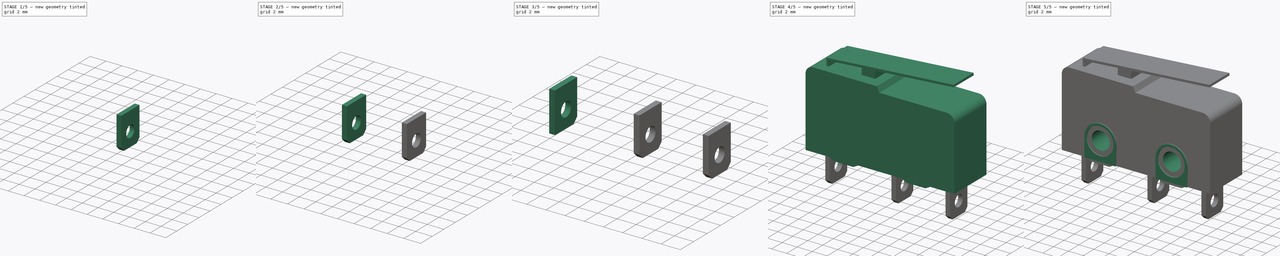
[diagram: build sequence overview — one tinted view per stage of 5, left to right]
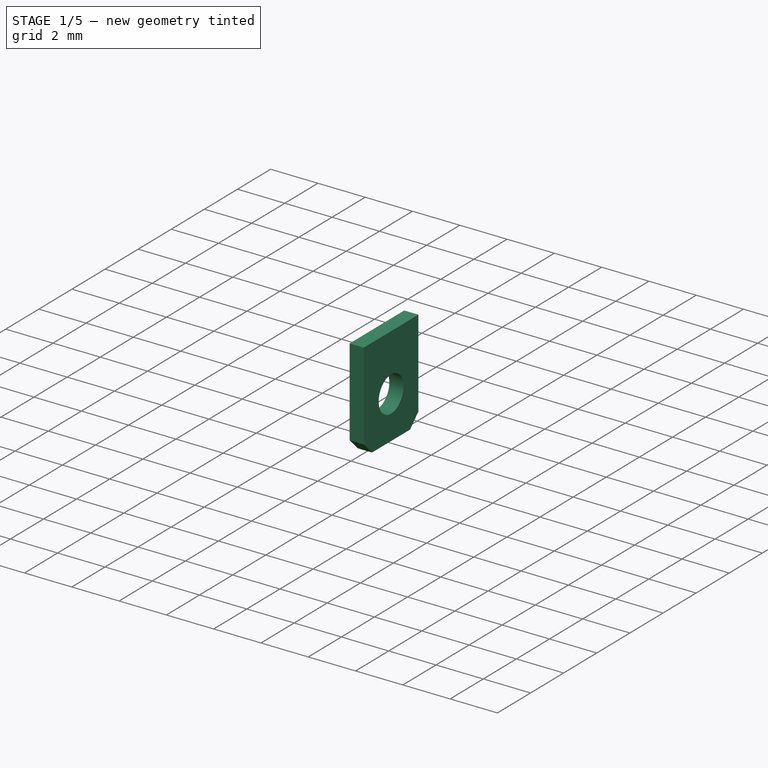
[diagram: stage 1 of 5 — iso view after this stage's code; geometry added in this stage tinted green]
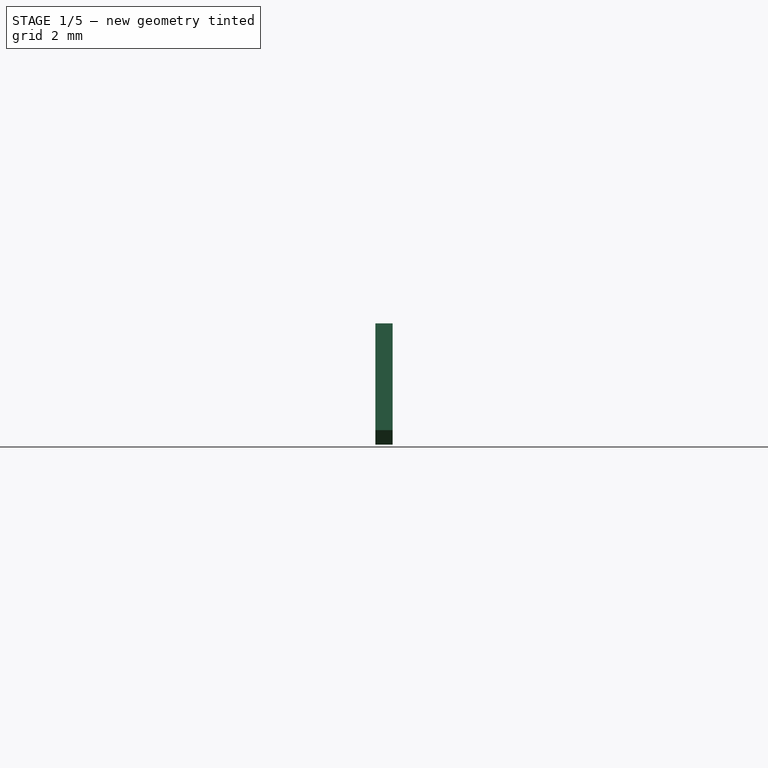
[diagram: stage 1 of 5 — front view after this stage's code; geometry added in this stage tinted green]
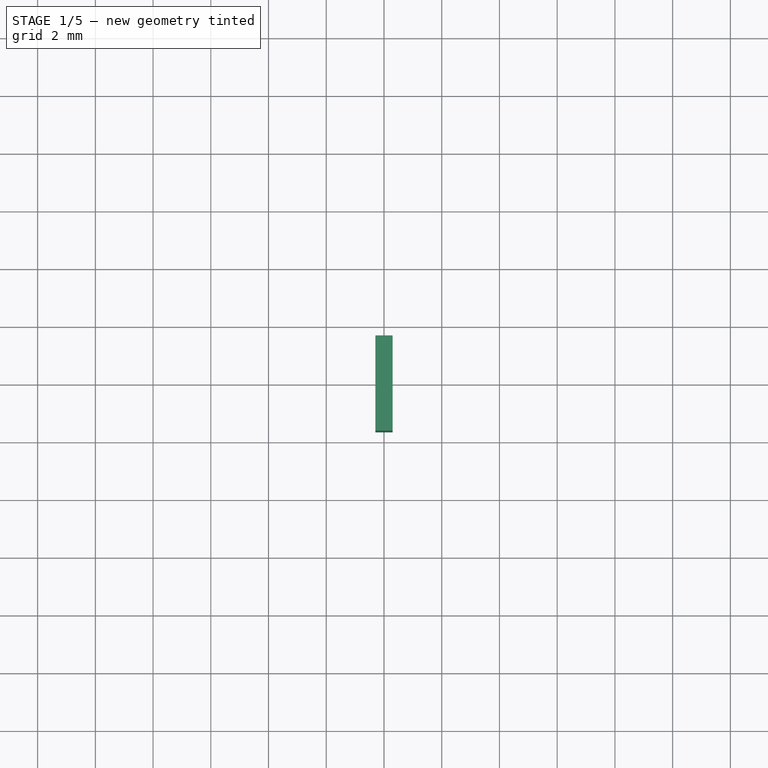
[diagram: stage 1 of 5 — top view after this stage's code; geometry added in this stage tinted green]
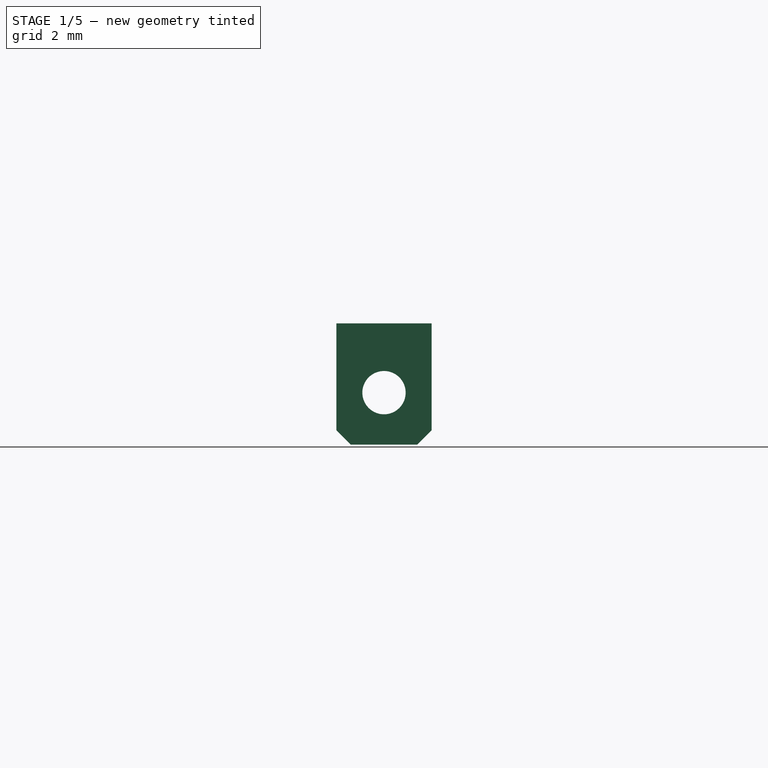
[diagram: stage 1 of 5 — right view after this stage's code; geometry added in this stage tinted green]
FCSTD DOCUMENT  (FreeCAD 0.16R5958 (Git))
Label: microswitch-ESS05-EGE
License: All rights reserved
LicenseURL: http://en.wikipedia.org/wiki/All_rights_reserved
objects: Sketcher::SketchObject×13, PartDesign::Pad×8, PartDesign::Chamfer×6, PartDesign::Pocket×5
note: 45 computed .brp shape members not serialized (recipe doc carries the construction recipe); baked Part::Feature solids carry a one-line shape summary decoded from their .brp

FEATURE [PartDesign::Pad] Pad006
  Length = 3.3
  Length2 = 100
  Midplane = true
  Placement = pos=(0,0,0) rot=(1,0,0;1.5708rad)
  Sketch = -> Sketch009
  Type = 0
FEATURE [Sketcher::SketchObject] Sketch010  label="Trou-contact-1"
  Placement = pos=(8.3,0,0) rot=(0.707107,0,0.707107;3.14159rad)
  Support = -> Pad006 [Face2]
  sketch-geometry (1):
    g0: Circle CenterX=-4.9 CenterY=0 CenterZ=0 NormalX=0 NormalY=0 NormalZ=1 Radius=0.75
  constraints (3):
    c: PointOnObject(g0,g-1)
    c: Radius(g0) = 0.75
    c: DistanceX(g0) = -4.9
FEATURE [PartDesign::Pocket] Pocket003
  Length = 0.6
  Placement = pos=(0,0,0) rot=(1,0,0;1.5708rad)
  Sketch = -> Sketch010
  Type = 0
FEATURE [PartDesign::Chamfer] Chamfer002
  Base = -> Pocket003 [Edge13]
  Placement = pos=(0,0,0) rot=(1,0,0;1.5708rad)
  Size = 0.5
FEATURE [PartDesign::Chamfer] Chamfer005
  Base = -> Chamfer002 [Edge9]
  Placement = pos=(0,0,0) rot=(1,0,0;1.5708rad)
  Size = 0.5
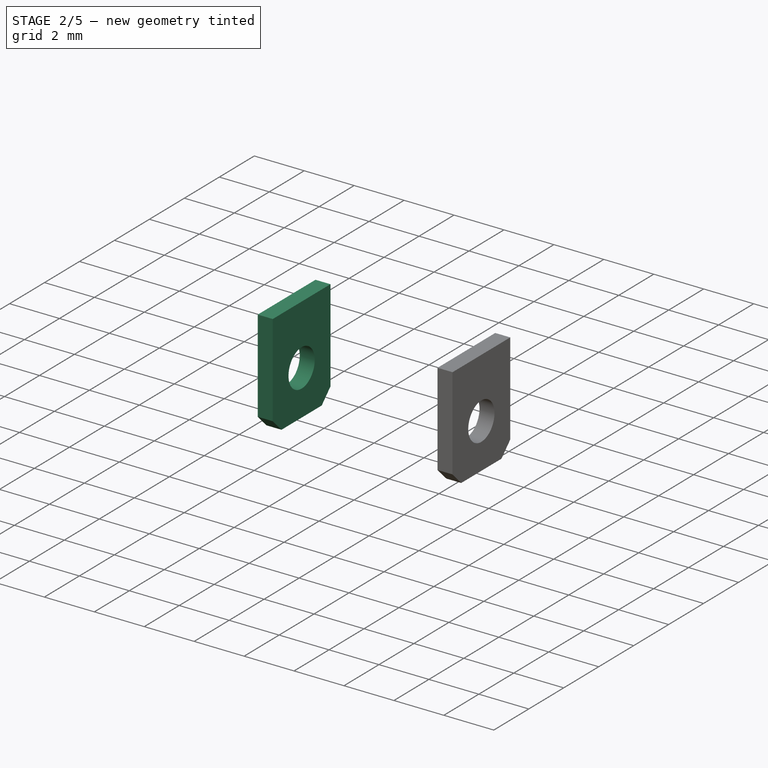
[diagram: stage 2 of 5 — iso view after this stage's code; geometry added in this stage tinted green]
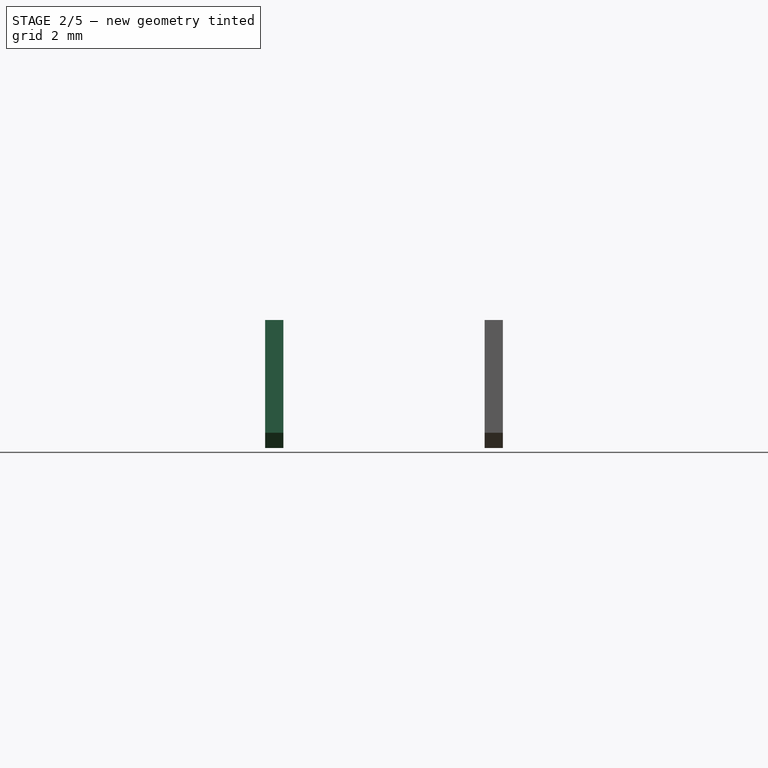
[diagram: stage 2 of 5 — front view after this stage's code; geometry added in this stage tinted green]
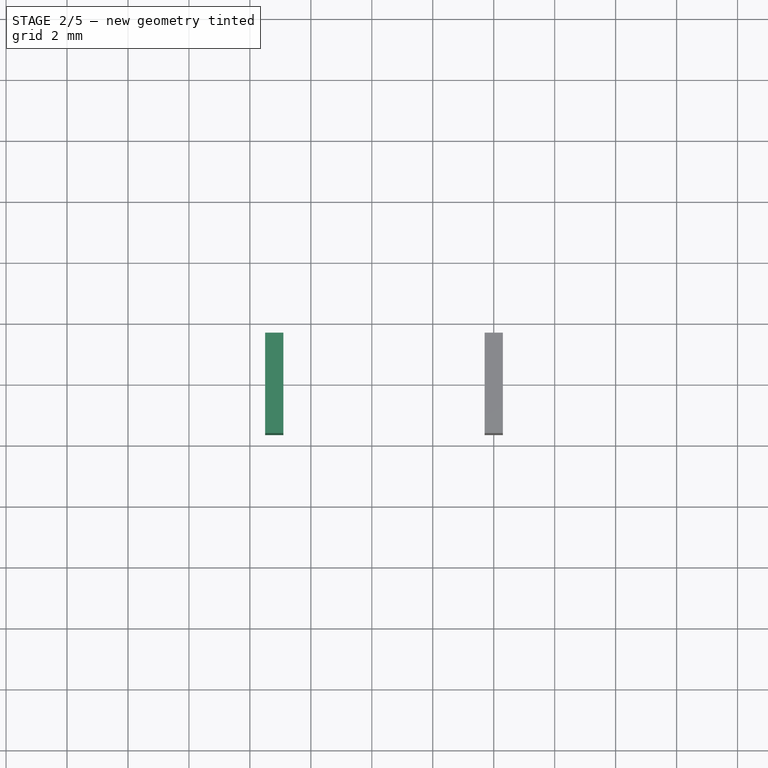
[diagram: stage 2 of 5 — top view after this stage's code; geometry added in this stage tinted green]
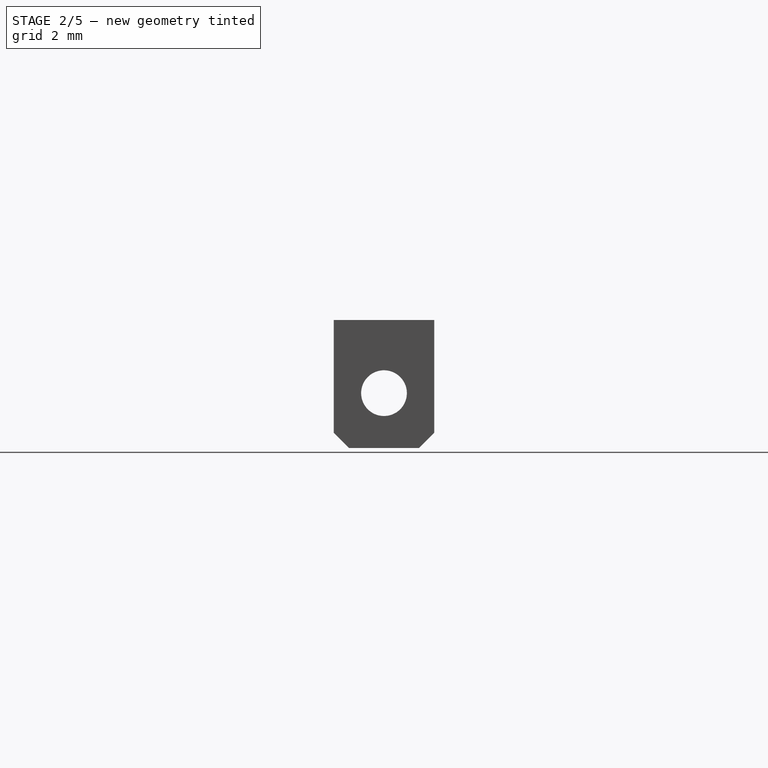
[diagram: stage 2 of 5 — right view after this stage's code; geometry added in this stage tinted green]
FEATURE [Sketcher::SketchObject] Sketch007  label="Contact-3"
  Placement = pos=(0,0,0) rot=(1,0,0;1.5708rad)
  sketch-geometry (4):
    g0: LineSegment StartX=0.5 StartY=-2.5 StartZ=0 EndX=1.1 EndY=-2.5 EndZ=0
    g1: LineSegment StartX=1.1 StartY=-2.5 StartZ=0 EndX=1.1 EndY=-6.7 EndZ=0
    g2: LineSegment StartX=1.1 StartY=-6.7 StartZ=0 EndX=0.5 EndY=-6.7 EndZ=0
    g3: LineSegment StartX=0.5 StartY=-6.7 StartZ=0 EndX=0.5 EndY=-2.5 EndZ=0
  constraints (12):
    c: Coincident(g0,g1)
    c: Coincident(g1,g2)
    c: Coincident(g2,g3)
    c: Coincident(g3,g0)
    c: Horizontal(g0)
    c: Horizontal(g2)
    c: Vertical(g1)
    c: Vertical(g3)
    c: DistanceY(g0) = -2.5
    c: DistanceY(g1) = -4.2
    c: DistanceX(g2) = -0.6
    c: DistanceX(g2) = 0.5
FEATURE [PartDesign::Pad] Pad005
  Length = 3.3
  Length2 = 100
  Midplane = true
  Placement = pos=(0,0,0) rot=(1,0,0;1.5708rad)
  Sketch = -> Sketch007
  Type = 0
FEATURE [Sketcher::SketchObject] Sketch008  label="Trou-contact-3"
  Placement = pos=(1.1,0,0) rot=(0.707107,0,0.707107;3.14159rad)
  Support = -> Pad005 [Face2]
  sketch-geometry (1):
    g0: Circle CenterX=-4.9 CenterY=0 CenterZ=0 NormalX=0 NormalY=0 NormalZ=1 Radius=0.75
  constraints (3):
    c: PointOnObject(g0,g-1)
    c: Radius(g0) = 0.75
    c: DistanceX(g0) = -4.9
FEATURE [Sketcher::SketchObject] Sketch009  label="Contact-1"
  Placement = pos=(0,0,0) rot=(1,0,0;1.5708rad)
  sketch-geometry (4):
    g0: LineSegment StartX=7.7 StartY=-2.5 StartZ=0 EndX=8.3 EndY=-2.5 EndZ=0
    g1: LineSegment StartX=8.3 StartY=-2.5 StartZ=0 EndX=8.3 EndY=-6.7 EndZ=0
    g2: LineSegment StartX=8.3 StartY=-6.7 StartZ=0 EndX=7.7 EndY=-6.7 EndZ=0
    g3: LineSegment StartX=7.7 StartY=-6.7 StartZ=0 EndX=7.7 EndY=-2.5 EndZ=0
  constraints (12):
    c: Coincident(g0,g1)
    c: Coincident(g1,g2)
    c: Coincident(g2,g3)
    c: Coincident(g3,g0)
    c: Horizontal(g0)
    c: Horizontal(g2)
    c: Vertical(g1)
    c: Vertical(g3)
    c: DistanceY(g0) = -2.5
    c: DistanceY(g1) = -4.2
    c: DistanceX(g2) = -0.6
    c: DistanceX(g2) = 7.7
FEATURE [Sketcher::SketchObject] Sketch011  label="Contact-2"
  Placement = pos=(0,0,0) rot=(1,0,0;1.5708rad)
  sketch-geometry (5):
    g0: LineSegment StartX=-8.3 StartY=-2.5 StartZ=0 EndX=-7.7 EndY=-2.5 EndZ=0
    g1: LineSegment StartX=-7.7 StartY=-2.5 StartZ=0 EndX=-7.7 EndY=-6.7 EndZ=0
    g2: LineSegment StartX=-7.7 StartY=-6.7 StartZ=0 EndX=-8.3 EndY=-6.7 EndZ=0
    g3: LineSegment StartX=-8.3 StartY=-6.7 StartZ=0 EndX=-8.3 EndY=-2.5 EndZ=0
    g4: GeomPoint [constr] X=0.5 Y=-6.65027 Z=0
  constraints (13):
    c: Coincident(g0,g1)
    c: Coincident(g1,g2)
    c: Coincident(g2,g3)
    c: Coincident(g3,g0)
    c: Horizontal(g0)
    c: Horizontal(g2)
    c: Vertical(g1)
    c: Vertical(g3)
    c: DistanceY(g0) = -2.5
    c: DistanceY(g1) = -4.2
    c: DistanceX(g2) = -0.6
    c: DistanceX(g4) = 0.5
    c: DistanceX(g4,g1) = -8.2
FEATURE [PartDesign::Pocket] Pocket002
  Length = 0.6
  Placement = pos=(0,0,0) rot=(1,0,0;1.5708rad)
  Sketch = -> Sketch008
  Type = 0
FEATURE [PartDesign::Chamfer] Chamfer001
  Base = -> Pocket002 [Edge13]
  Placement = pos=(0,0,0) rot=(1,0,0;1.5708rad)
  Size = 0.5
FEATURE [PartDesign::Chamfer] Chamfer004
  Base = -> Chamfer001 [Edge9]
  Placement = pos=(0,0,0) rot=(1,0,0;1.5708rad)
  Size = 0.5
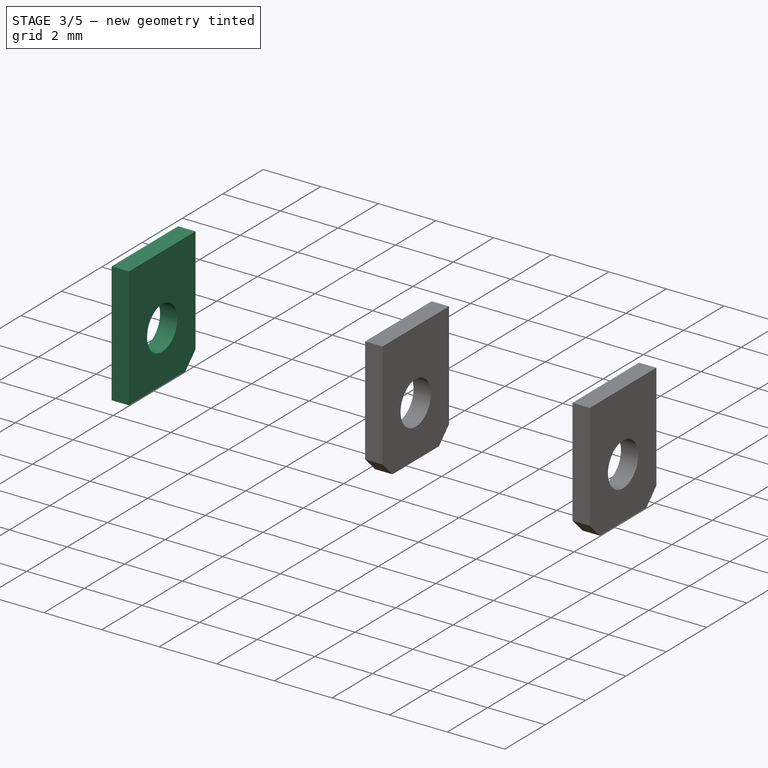
[diagram: stage 3 of 5 — iso view after this stage's code; geometry added in this stage tinted green]
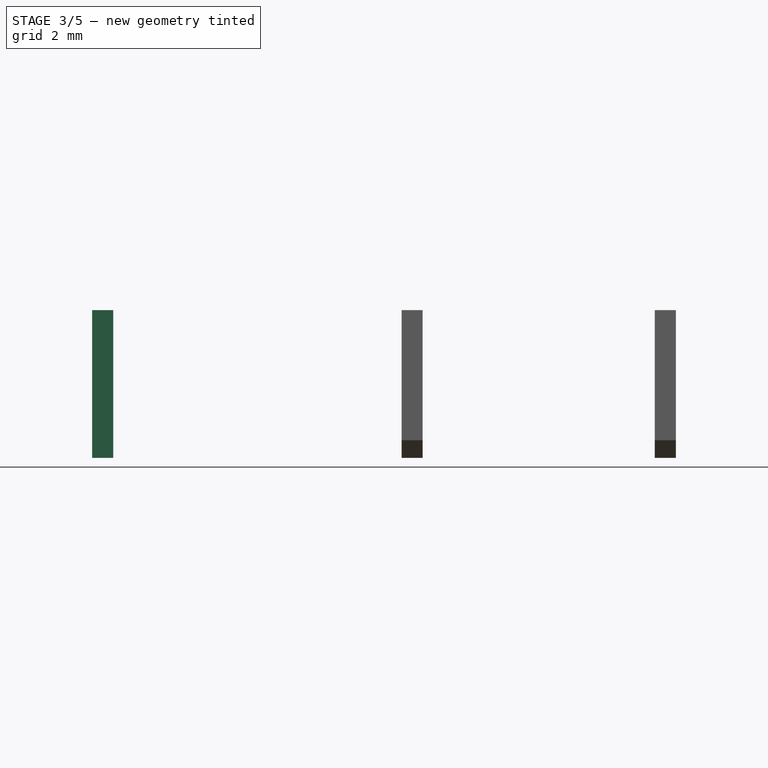
[diagram: stage 3 of 5 — front view after this stage's code; geometry added in this stage tinted green]
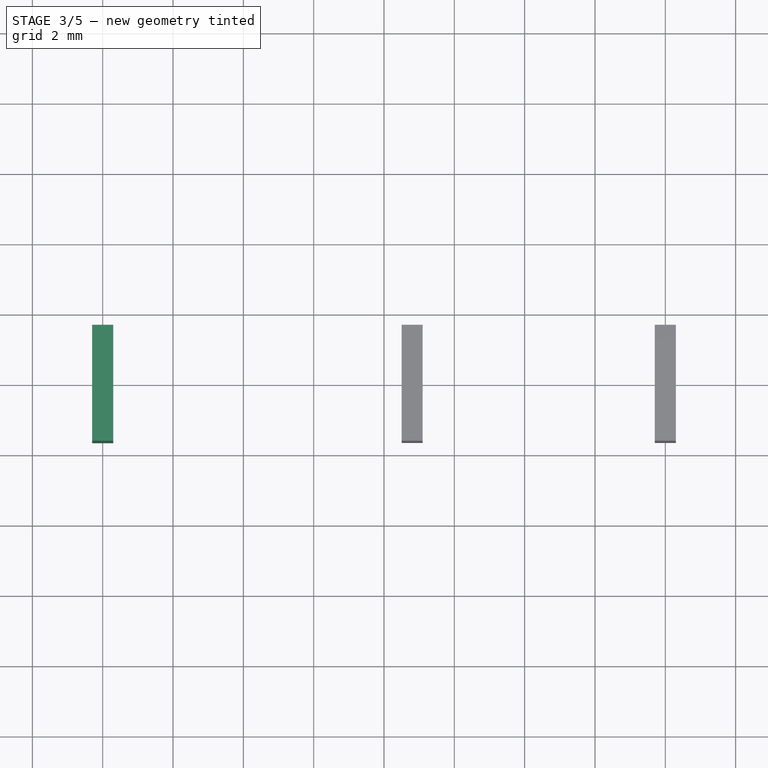
[diagram: stage 3 of 5 — top view after this stage's code; geometry added in this stage tinted green]
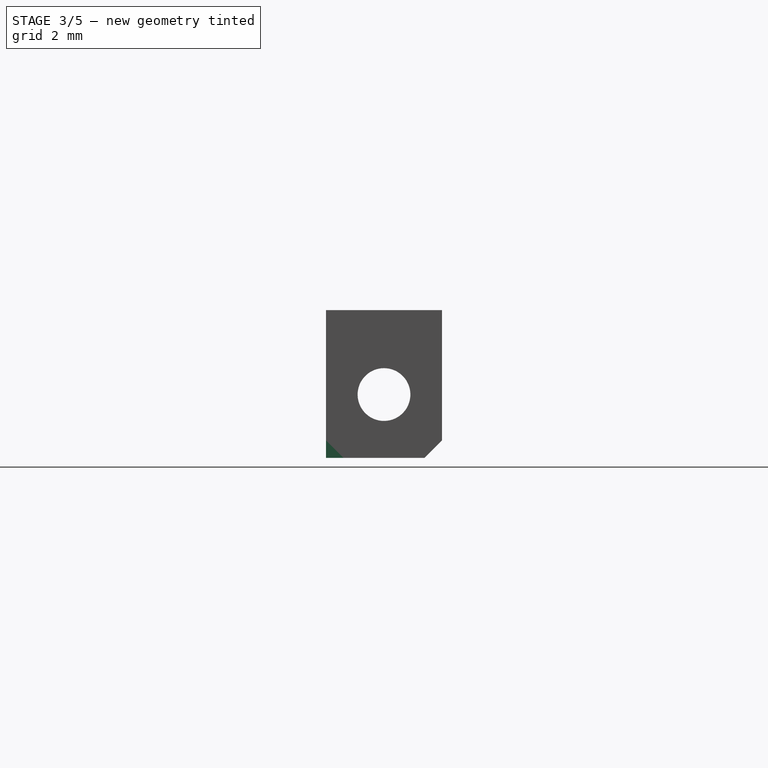
[diagram: stage 3 of 5 — right view after this stage's code; geometry added in this stage tinted green]
FEATURE [PartDesign::Pad] Pad007
  Length = 3.3
  Length2 = 100
  Midplane = true
  Placement = pos=(0,0,0) rot=(1,0,0;1.5708rad)
  Sketch = -> Sketch011
  Type = 0
FEATURE [Sketcher::SketchObject] Sketch012  label="Trou-contact-2"
  Placement = pos=(-8.3,0,0) rot=(0.707107,0,-0.707107;3.14159rad)
  Support = -> Pad007 [Face4]
  sketch-geometry (1):
    g0: Circle CenterX=4.9 CenterY=0 CenterZ=0 NormalX=0 NormalY=0 NormalZ=1 Radius=0.75
  constraints (3):
    c: PointOnObject(g0,g-1)
    c: Radius(g0) = 0.75
    c: DistanceX(g0) = 4.9
FEATURE [PartDesign::Pocket] Pocket004
  Length = 0.6
  Placement = pos=(0,0,0) rot=(1,0,0;1.5708rad)
  Sketch = -> Sketch012
  Type = 0
FEATURE [PartDesign::Chamfer] Chamfer
  Base = -> Pocket004 [Edge13]
  Placement = pos=(0,0,0) rot=(1,0,0;1.5708rad)
  Size = 0.5
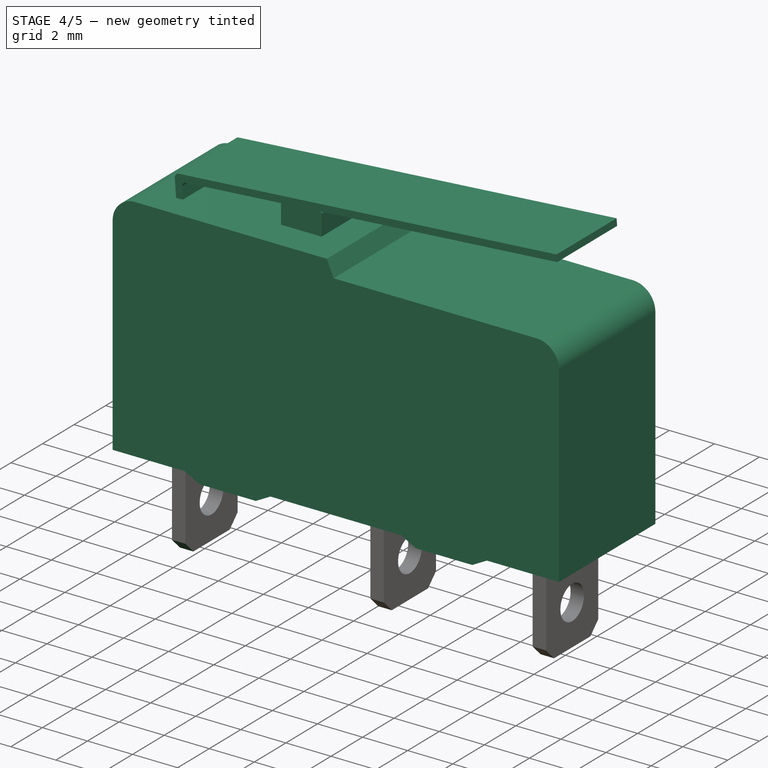
[diagram: stage 4 of 5 — iso view after this stage's code; geometry added in this stage tinted green]
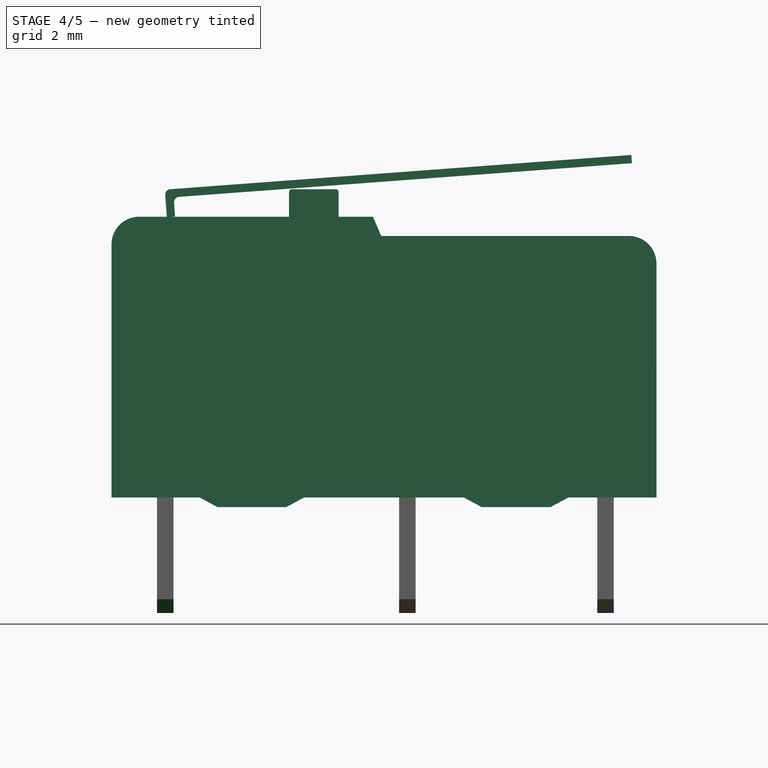
[diagram: stage 4 of 5 — front view after this stage's code; geometry added in this stage tinted green]
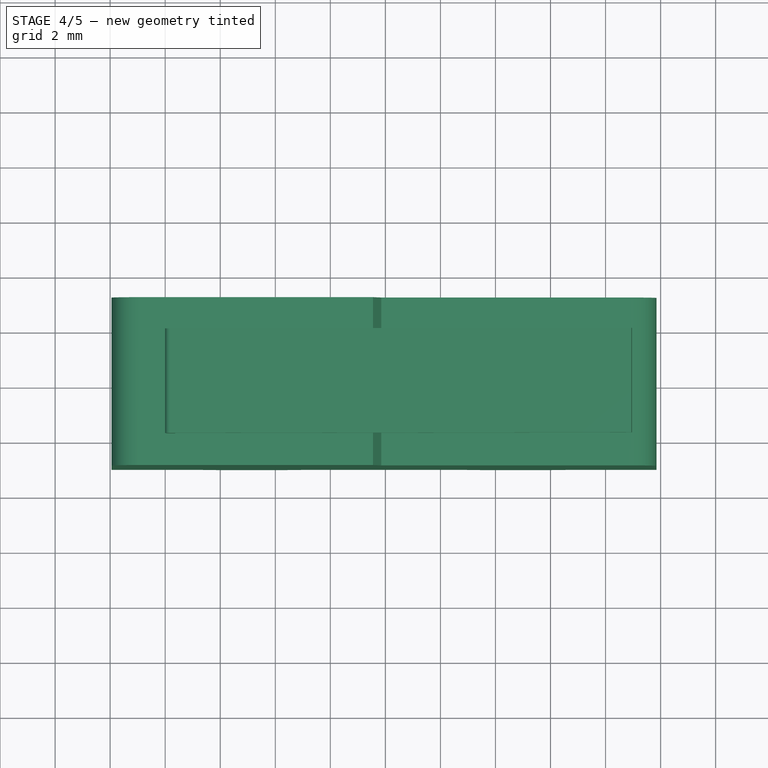
[diagram: stage 4 of 5 — top view after this stage's code; geometry added in this stage tinted green]
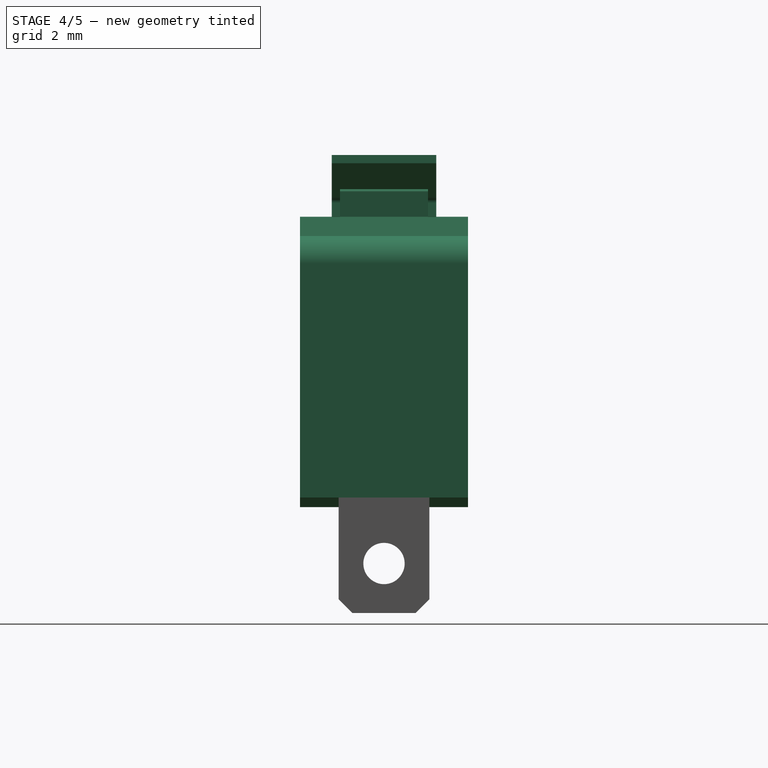
[diagram: stage 4 of 5 — right view after this stage's code; geometry added in this stage tinted green]
FEATURE [Sketcher::SketchObject] Sketch  label="Profil-Corp"
  Placement = pos=(0,0,0) rot=(1,0,0;1.5708rad)
  sketch-geometry (19):
    g0: LineSegment StartX=-8.95 StartY=7.7 StartZ=0 EndX=-0.45 EndY=7.7 EndZ=0
    g1: LineSegment StartX=9.85 StartY=6 StartZ=0 EndX=9.85 EndY=-2.5 EndZ=0
    g2: LineSegment StartX=-9.95 StartY=-2.5 StartZ=0 EndX=-9.95 EndY=6.7 EndZ=0
    g3: LineSegment StartX=-0.45 StartY=7.7 StartZ=0 EndX=-0.15 EndY=7 EndZ=0
    g4: LineSegment StartX=-0.15 StartY=7 StartZ=0 EndX=8.85 EndY=7 EndZ=0
    g5: ArcOfCircle CenterX=-8.95 CenterY=6.7 CenterZ=0 NormalX=0 NormalY=0 NormalZ=1 Radius=1 StartAngle=1.5708 EndAngle=3.14159
    g6: ArcOfCircle CenterX=8.85 CenterY=6 CenterZ=0 NormalX=0 NormalY=0 NormalZ=1 Radius=1 StartAngle=0 EndAngle=1.5708
    g7: LineSegment StartX=-9.95 StartY=-2.5 StartZ=0 EndX=-6.75 EndY=-2.5 EndZ=0
    g8: LineSegment StartX=-6.75 StartY=-2.5 StartZ=0 EndX=-6.1 EndY=-2.85 EndZ=0
    g9: LineSegment StartX=-6.1 StartY=-2.85 StartZ=0 EndX=-3.6 EndY=-2.85 EndZ=0
    g10: LineSegment StartX=-3.6 StartY=-2.85 StartZ=0 EndX=-2.95 EndY=-2.5 EndZ=0
    g11: LineSegment StartX=-2.95 StartY=-2.5 StartZ=0 EndX=2.85 EndY=-2.5 EndZ=0
    g12: LineSegment StartX=2.85 StartY=-2.5 StartZ=0 EndX=3.5 EndY=-2.85 EndZ=0
    g13: LineSegment StartX=3.5 StartY=-2.85 StartZ=0 EndX=6 EndY=-2.85 EndZ=0
    g14: LineSegment StartX=6 StartY=-2.85 StartZ=0 EndX=6.65 EndY=-2.5 EndZ=0
    g15: LineSegment StartX=6.65 StartY=-2.5 StartZ=0 EndX=9.85 EndY=-2.5 EndZ=0
    g16: LineSegment [constr] StartX=2.85 StartY=-2.5 StartZ=0 EndX=6.65 EndY=-2.5 EndZ=0
    g17: LineSegment [constr] StartX=-6.75 StartY=-2.5 StartZ=0 EndX=-2.95 EndY=-2.5 EndZ=0
    g18: LineSegment [constr] StartX=-3.6 StartY=-2.85 StartZ=0 EndX=3.5 EndY=-2.85 EndZ=0
  constraints (52):
    c: Horizontal(g0)
    c: Vertical(g1)
    c: Vertical(g2)
    c: Coincident(g3,g4)
    c: Horizontal(g4)
    c: Coincident(g0,g3)
    c: Tangent(g0,g5) = 1.5708
    c: Tangent(g2,g5) = 1.5708
    c: Tangent(g1,g6) = 1.5708
    c: Tangent(g4,g6) = 1.5708
    c: DistanceY(g4,g1) = -9.5
    c: DistanceY(g0,g1) = -10.2
    c: Radius(g6) = 1
    c: Equal(g5,g6)
    c: Coincident(g2,g7)
    c: Horizontal(g7)
    c: Coincident(g7,g8)
    c: Coincident(g8,g9)
    c: Horizontal(g9)
    c: Coincident(g9,g10)
    c: Coincident(g10,g11)
    c: Horizontal(g11)
    c: Coincident(g11,g12)
    c: Coincident(g12,g13)
    c: Horizontal(g13)
    c: Coincident(g13,g14)
    c: Coincident(g14,g15)
    c: Coincident(g15,g1)
    c: Horizontal(g15)
    c: Equal(g9,g13)
    c: DistanceX(g9) = 2.5
    c: DistanceY(g13,g1) = 0.35
    c: Coincident(g16,g11)
    c: Coincident(g16,g14)
    c: Horizontal(g16)
    c: Coincident(g17,g7)
    c: Coincident(g17,g10)
    c: Horizontal(g17)
    c: Coincident(g18,g9)
    c: Coincident(g18,g12)
    c: Horizontal(g18)
    c: DistanceX(g2,g1) = 19.8
    c: DistanceX(g3,g1) = 10
    c: DistanceX(g2,g0) = 9.5
    c: Equal(g10,g8)
    c: Equal(g8,g12)
    c: Equal(g12,g14)
    c: DistanceY(g1) = -2.5
    c: DistanceX(g1) = 9.85
    c: Equal(g15,g7)
    c: DistanceX(g15) = 3.2
    c: DistanceX(g11) = 5.8
FEATURE [PartDesign::Pad] Pad
  Length = 6.1
  Length2 = 100
  Midplane = true
  Placement = pos=(0,0,0) rot=(1,0,0;1.5708rad)
  Sketch = -> Sketch
  Type = 0
FEATURE [Sketcher::SketchObject] Sketch005  label="Switch"
  Placement = pos=(0,0,0) rot=(1,0,0;1.5708rad)
  sketch-geometry (6):
    g0: LineSegment StartX=-3.4 StartY=8.7 StartZ=0 EndX=-1.8 EndY=8.7 EndZ=0
    g1: LineSegment StartX=-1.7 StartY=8.6 StartZ=0 EndX=-1.7 EndY=7.7 EndZ=0
    g2: LineSegment StartX=-1.7 StartY=7.7 StartZ=0 EndX=-3.5 EndY=7.7 EndZ=0
    g3: LineSegment StartX=-3.5 StartY=7.7 StartZ=0 EndX=-3.5 EndY=8.6 EndZ=0
    g4: ArcOfCircle CenterX=-1.8 CenterY=8.6 CenterZ=0 NormalX=0 NormalY=0 NormalZ=1 Radius=0.1 StartAngle=0 EndAngle=1.5708
    g5: ArcOfCircle CenterX=-3.4 CenterY=8.6 CenterZ=0 NormalX=0 NormalY=0 NormalZ=1 Radius=0.1 StartAngle=1.5708 EndAngle=3.14159
  constraints (16):
    c: Coincident(g1,g2)
    c: Coincident(g2,g3)
    c: Horizontal(g0)
    c: Horizontal(g2)
    c: Vertical(g1)
    c: Vertical(g3)
    c: Tangent(g0,g4) = 1.5708
    c: Tangent(g1,g4) = 1.5708
    c: Tangent(g0,g5) = 1.5708
    c: Tangent(g3,g5) = 1.5708
    c: Radius(g4) = 0.1
    c: Equal(g4,g5)
    c: DistanceX(g3,g1) = 1.8
    c: DistanceY(g0) = 8.7
    c: DistanceY(g0,g2) = -1
    c: DistanceX(g1) = -1.7
FEATURE [PartDesign::Pad] Pad003
  Length = 3.2
  Length2 = 100
  Midplane = true
  Placement = pos=(0,0,0) rot=(1,0,0;1.5708rad)
  Sketch = -> Sketch005
  Type = 0
FEATURE [Sketcher::SketchObject] Sketch006  label="Languette"
  Placement = pos=(0,0,0) rot=(1,0,0;1.5708rad)
  sketch-geometry (9):
    g0: LineSegment StartX=-7.94071 StartY=7.68793 StartZ=0 EndX=-8 EndY=8.48573 EndZ=0
    g1: LineSegment StartX=-7.81537 StartY=8.7 StartZ=0 EndX=8.93726 EndY=9.94494 EndZ=0
    g2: LineSegment StartX=8.93726 StartY=9.94494 StartZ=0 EndX=8.95955 EndY=9.64494 EndZ=0
    g3: LineSegment StartX=8.95955 StartY=9.64494 StartZ=0 EndX=-7.49308 EndY=8.42229 EndZ=0
    g4: LineSegment StartX=-7.67771 StartY=8.20802 StartZ=0 EndX=-7.64071 EndY=7.71022 EndZ=0
    g5: LineSegment StartX=-7.64071 StartY=7.71022 StartZ=0 EndX=-7.94071 EndY=7.68793 EndZ=0
    g6: ArcOfCircle CenterX=-7.80055 CenterY=8.50055 CenterZ=0 NormalX=0 NormalY=0 NormalZ=1 Radius=0.2 StartAngle=1.64497 EndAngle=3.21577
    g7: ArcOfCircle CenterX=-7.47826 CenterY=8.22284 CenterZ=0 NormalX=0 NormalY=0 NormalZ=1 Radius=0.2 StartAngle=1.64497 EndAngle=3.21577
    g8: LineSegment [constr] StartX=-7.51537 StartY=8.72229 StartZ=0 EndX=-7.49308 EndY=8.42229 EndZ=0
  constraints (25):
    c: Coincident(g1,g2)
    c: Coincident(g2,g3)
    c: Coincident(g4,g5)
    c: Coincident(g5,g0)
    c: Tangent(g0,g6) = 1.5708
    c: Tangent(g1,g6) = 1.5708
    c: Tangent(g3,g7) = -1.5708
    c: Tangent(g4,g7) = -1.5708
    c: Perpendicular(g3,g4)
    c: Perpendicular(g1,g0)
    c: Perpendicular(g4,g5)
    c: Perpendicular(g2,g1)
    c: Equal(g2,g5)
    c: DistanceY(g2) = -0.3
    c: Coincident(g8,g3)
    c: PointOnObject(g8,g1)
    c: Perpendicular(g1,g8)
    c: Equal(g8,g2)
    c: Radius(g7) = 0.2
    c: Radius(g6) = 0.2
    c: DistanceX(g0) = -8
    c: Distance(g0) = 0.8
    c: Distance(g0,g1) = 17
    c: DistanceY(g1) = 8.7
    c: Angle(g-1,g1) = 0.0741765
FEATURE [PartDesign::Pad] Pad004
  Length = 3.8
  Length2 = 100
  Midplane = true
  Placement = pos=(0,0,0) rot=(1,0,0;1.5708rad)
  Sketch = -> Sketch006
  Type = 0
FEATURE [PartDesign::Chamfer] Chamfer003
  Base = -> Chamfer [Edge9]
  Placement = pos=(0,0,0) rot=(1,0,0;1.5708rad)
  Size = 0.5
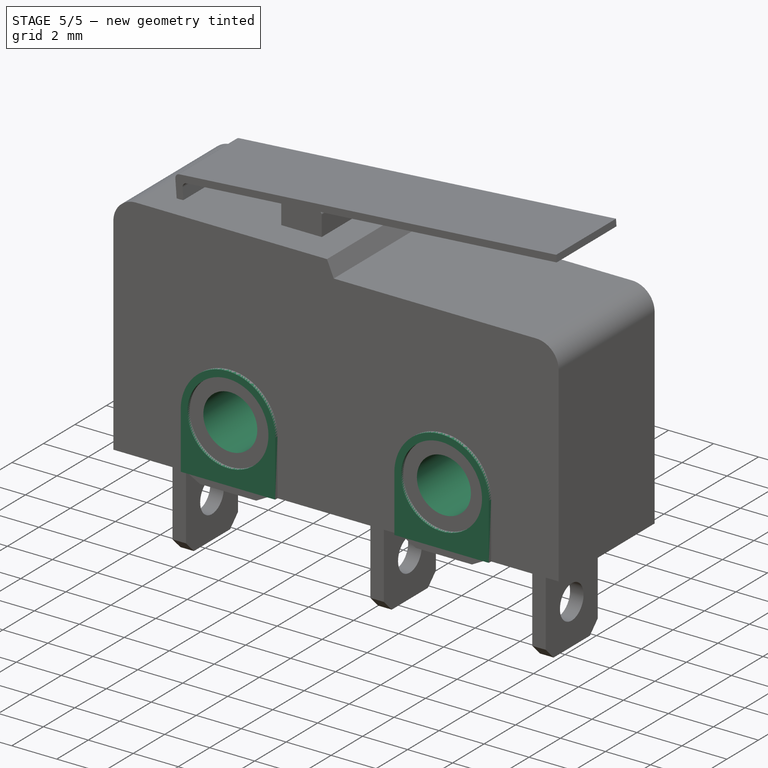
[diagram: stage 5 of 5 — iso view after this stage's code; geometry added in this stage tinted green]
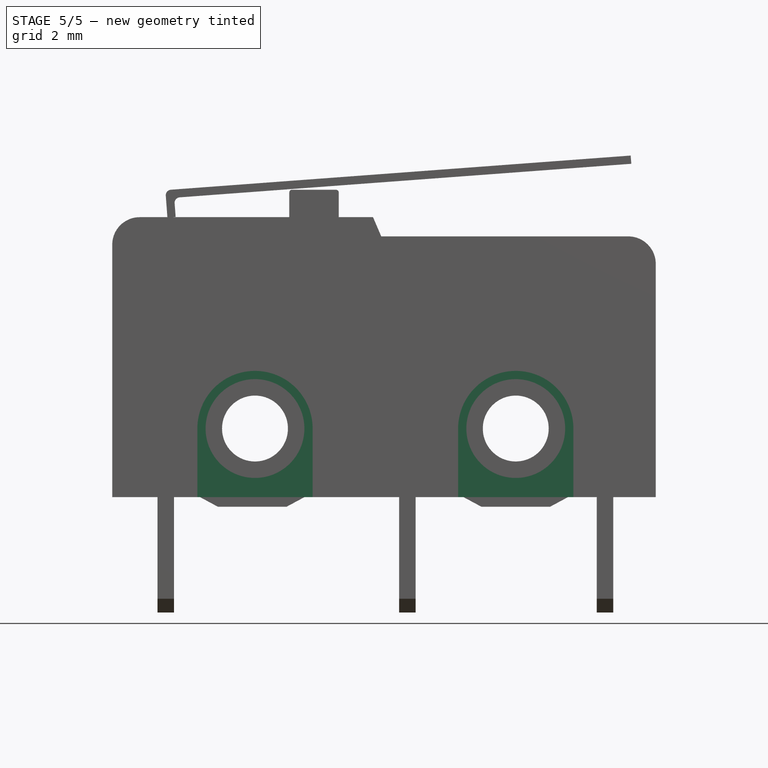
[diagram: stage 5 of 5 — front view after this stage's code; geometry added in this stage tinted green]
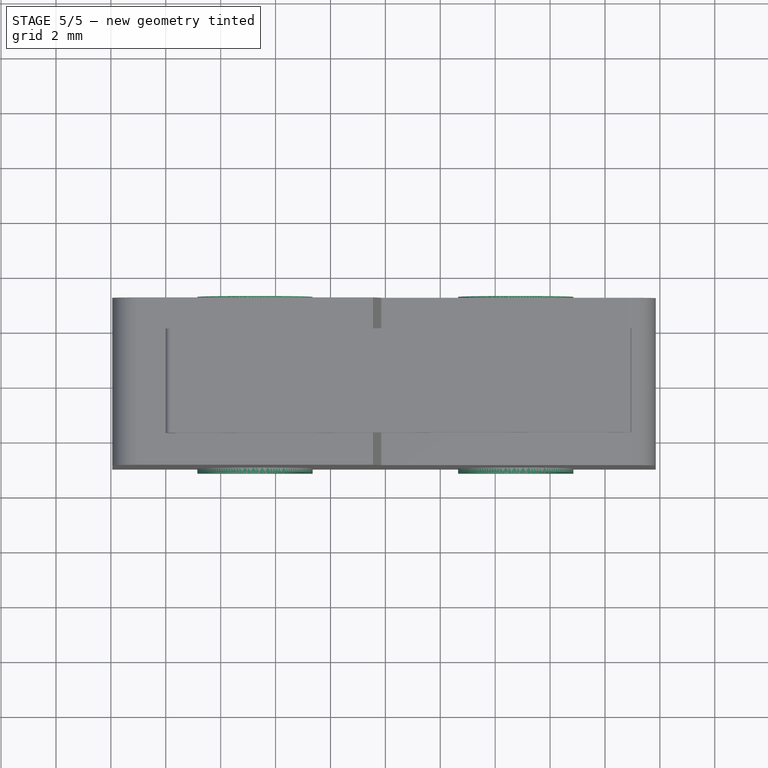
[diagram: stage 5 of 5 — top view after this stage's code; geometry added in this stage tinted green]
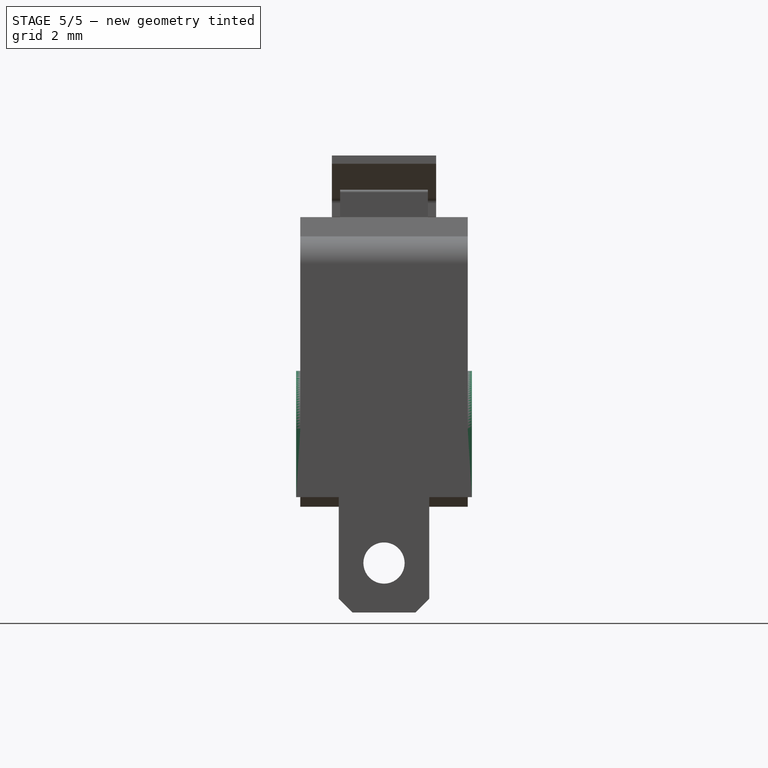
[diagram: stage 5 of 5 — right view after this stage's code; geometry added in this stage tinted green]
FEATURE [Sketcher::SketchObject] Sketch001  label="Repose-contact-left"
  Placement = pos=(0,-3.05,0) rot=(1,0,0;1.5708rad)
  Support = -> Pad [Face18]
  sketch-geometry (8):
    g0: LineSegment StartX=-2.65 StartY=0 StartZ=0 EndX=-2.65 EndY=-2.5 EndZ=0
    g1: LineSegment StartX=-2.65 StartY=-2.5 StartZ=0 EndX=-6.85 EndY=-2.5 EndZ=0
    g2: LineSegment StartX=-6.85 StartY=-2.5 StartZ=0 EndX=-6.85 EndY=0 EndZ=0
    g3: LineSegment StartX=6.85 StartY=0 StartZ=0 EndX=6.85 EndY=-2.5 EndZ=0
    g4: LineSegment StartX=6.85 StartY=-2.5 StartZ=0 EndX=2.65 EndY=-2.5 EndZ=0
    g5: LineSegment StartX=2.65 StartY=-2.5 StartZ=0 EndX=2.65 EndY=0 EndZ=0
    g6: ArcOfCircle CenterX=-4.75 CenterY=0 CenterZ=0 NormalX=0 NormalY=0 NormalZ=1 Radius=2.1 StartAngle=0 EndAngle=3.14159
    g7: ArcOfCircle CenterX=4.75 CenterY=0 CenterZ=0 NormalX=0 NormalY=0 NormalZ=1 Radius=2.1 StartAngle=0 EndAngle=3.14159
  constraints (22):
    c: Coincident(g0,g1)
    c: Coincident(g1,g2)
    c: Horizontal(g1)
    c: Vertical(g0)
    c: Vertical(g2)
    c: Coincident(g3,g4)
    c: Coincident(g4,g5)
    c: Horizontal(g4)
    c: Vertical(g3)
    c: Vertical(g5)
    c: Tangent(g3,g7) = 1.5708
    c: Tangent(g5,g7) = 1.5708
    c: Tangent(g0,g6) = 1.5708
    c: Tangent(g2,g6) = 1.5708
    c: Equal(g6,g7)
    c: Equal(g0,g5)
    c: PointOnObject(g6,g-1)
    c: PointOnObject(g7,g-1)
    c: DistanceX(g6) = -4.75
    c: DistanceX(g7) = 4.75
    c: Radius(g6) = 2.1
    c: DistanceY(g2) = 2.5
FEATURE [PartDesign::Pad] Pad001
  Length = 0.15
  Length2 = 100
  Placement = pos=(0,0,0) rot=(1,0,0;1.5708rad)
  Sketch = -> Sketch001
  Type = 0
FEATURE [Sketcher::SketchObject] Sketch002  label="Repose-contact-right"
  Placement = pos=(0,3.05,0) rot=(-1,0,0;1.5708rad)
  Support = -> Pad001 [Face4]
  sketch-geometry (8):
    g0: LineSegment StartX=-6.85 StartY=2.5 StartZ=0 EndX=-2.65 EndY=2.5 EndZ=0
    g1: LineSegment StartX=-2.65 StartY=2.5 StartZ=0 EndX=-2.65 EndY=0 EndZ=0
    g2: LineSegment StartX=-6.85 StartY=0 StartZ=0 EndX=-6.85 EndY=2.5 EndZ=0
    g3: LineSegment StartX=2.65 StartY=2.5 StartZ=0 EndX=6.85 EndY=2.5 EndZ=0
    g4: LineSegment StartX=6.85 StartY=2.5 StartZ=0 EndX=6.85 EndY=0 EndZ=0
    g5: LineSegment StartX=2.65 StartY=0 StartZ=0 EndX=2.65 EndY=2.5 EndZ=0
    g6: ArcOfCircle CenterX=-4.75 CenterY=0 CenterZ=0 NormalX=0 NormalY=0 NormalZ=1 Radius=2.1 StartAngle=3.14159 EndAngle=6.28319
    g7: ArcOfCircle CenterX=4.75 CenterY=0 CenterZ=0 NormalX=0 NormalY=0 NormalZ=1 Radius=2.1 StartAngle=3.14159 EndAngle=6.28319
  constraints (22):
    c: Coincident(g0,g1)
    c: Coincident(g2,g0)
    c: Horizontal(g0)
    c: Vertical(g1)
    c: Vertical(g2)
    c: Coincident(g3,g4)
    c: Coincident(g5,g3)
    c: Horizontal(g3)
    c: Vertical(g4)
    c: Vertical(g5)
    c: Tangent(g4,g7) = 1.5708
    c: Tangent(g5,g7) = 1.5708
    c: Tangent(g1,g6) = 1.5708
    c: Tangent(g2,g6) = 1.5708
    c: PointOnObject(g6,g-1)
    c: PointOnObject(g7,g-1)
    c: Radius(g7) = 2.1
    c: Equal(g7,g6)
    c: Equal(g2,g5)
    c: DistanceY(g2) = 2.5
    c: DistanceX(g6) = -4.75
    c: DistanceX(g7) = 4.75
FEATURE [PartDesign::Pad] Pad002
  Length = 0.15
  Length2 = 100
  Placement = pos=(0,0,0) rot=(1,0,0;1.5708rad)
  Sketch = -> Sketch002
  Type = 0
FEATURE [Sketcher::SketchObject] Sketch003  label="Trou-encastre"
  Placement = pos=(0,-3.2,0) rot=(1,0,0;1.5708rad)
  Support = -> Pad002 [Face36]
  sketch-geometry (2):
    g0: Circle CenterX=-4.75 CenterY=0 CenterZ=0 NormalX=0 NormalY=0 NormalZ=1 Radius=1.8
    g1: Circle CenterX=4.75 CenterY=0 CenterZ=0 NormalX=0 NormalY=0 NormalZ=1 Radius=1.8
  constraints (6):
    c: PointOnObject(g0,g-1)
    c: PointOnObject(g1,g-1)
    c: DistanceX(g1) = 4.75
    c: DistanceX(g1,g0) = -9.5
    c: Radius(g1) = 1.8
    c: Equal(g1,g0)
FEATURE [PartDesign::Pocket] Pocket
  Length = 0.15
  Placement = pos=(0,0,0) rot=(1,0,0;1.5708rad)
  Sketch = -> Sketch003
  Type = 0
FEATURE [Sketcher::SketchObject] Sketch004  label="Trou-screw"
  Placement = pos=(0,3.2,0) rot=(-1,0,0;1.5708rad)
  Support = -> Pocket [Face28]
  sketch-geometry (2):
    g0: Circle CenterX=-4.75 CenterY=0 CenterZ=0 NormalX=0 NormalY=0 NormalZ=1 Radius=1.2
    g1: Circle CenterX=4.75 CenterY=0 CenterZ=0 NormalX=0 NormalY=0 NormalZ=1 Radius=1.2
  constraints (6):
    c: PointOnObject(g0,g-1)
    c: PointOnObject(g1,g-1)
    c: DistanceX(g1) = 4.75
    c: DistanceX(g1,g0) = -9.5
    c: Radius(g1) = 1.2
    c: Equal(g1,g0)
FEATURE [PartDesign::Pocket] Pocket001
  Length = 7
  Placement = pos=(0,0,0) rot=(1,0,0;1.5708rad)
  Sketch = -> Sketch004
  Type = 0
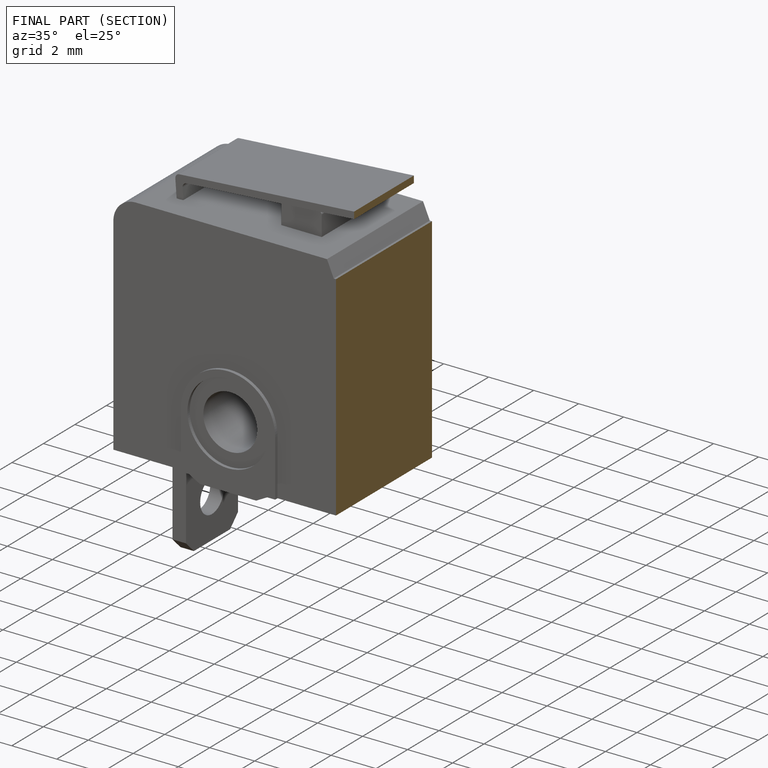
[diagram: finished part — half-section view (interior)]
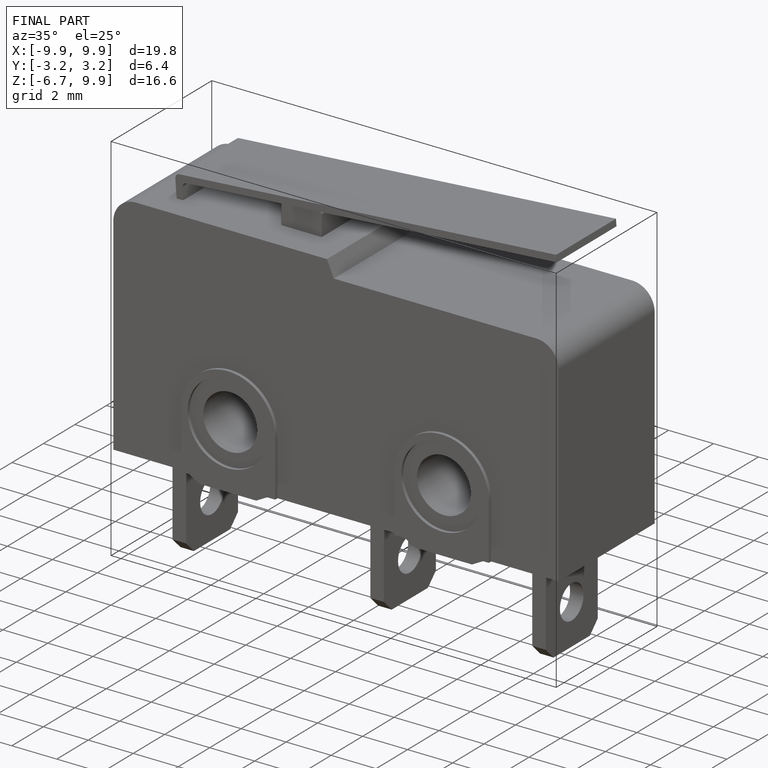
[diagram: finished part — iso view with bounding-box wireframe]
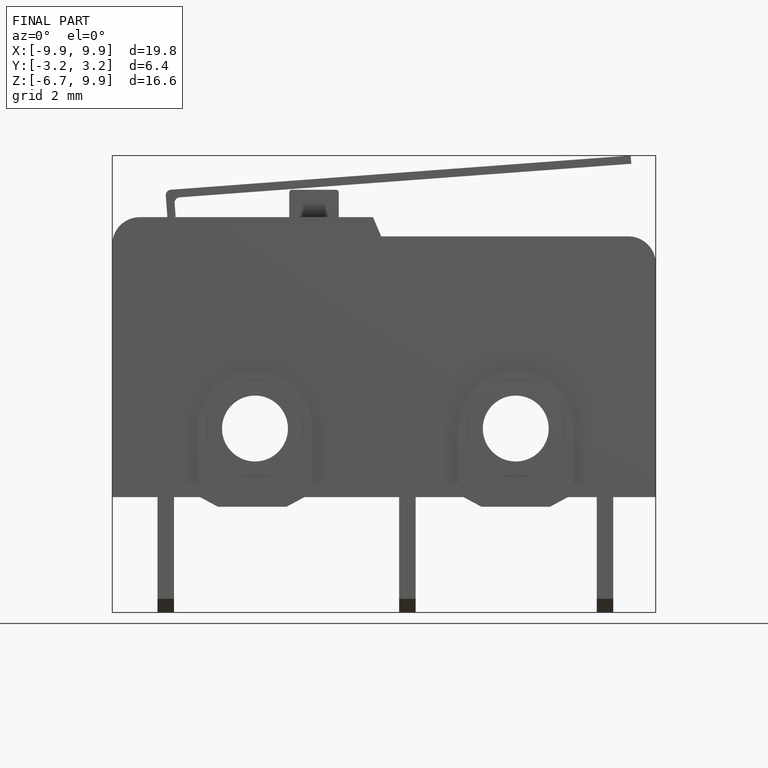
[diagram: finished part — front view with bounding-box wireframe]
